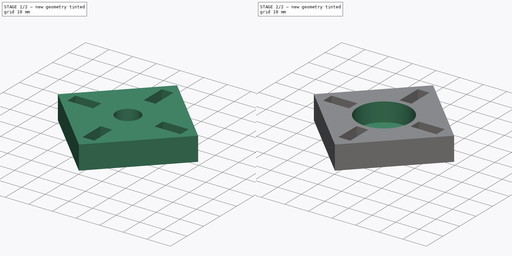
[diagram: build sequence overview — one tinted view per stage of 2, left to right]
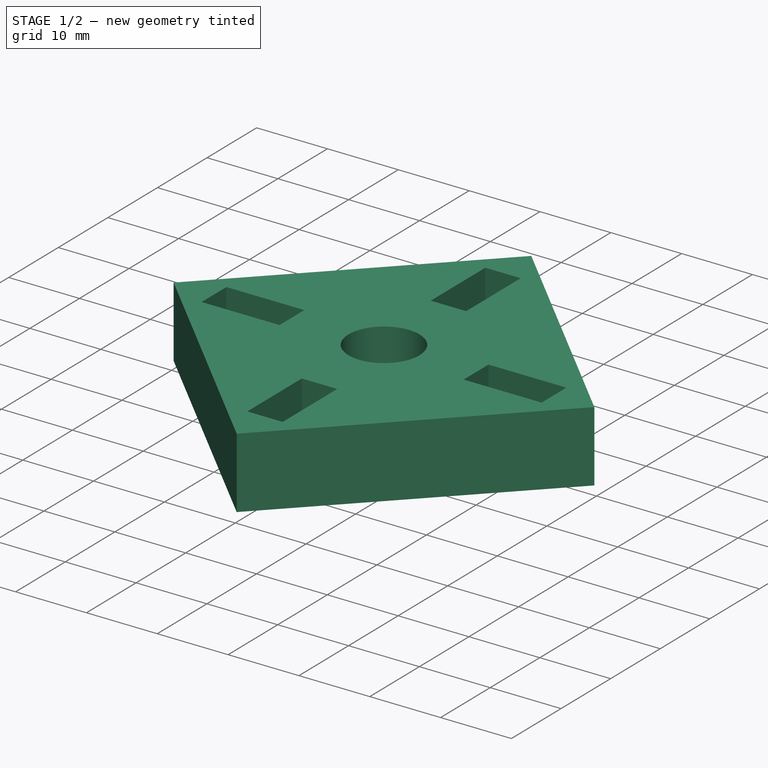
[diagram: stage 1 of 2 — iso view after this stage's code; geometry added in this stage tinted green]
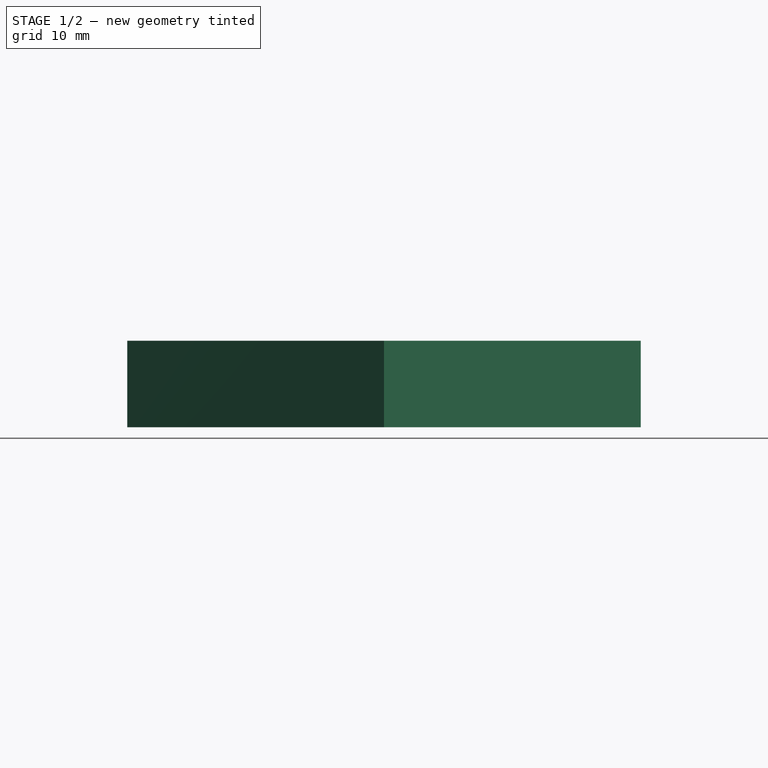
[diagram: stage 1 of 2 — front view after this stage's code; geometry added in this stage tinted green]
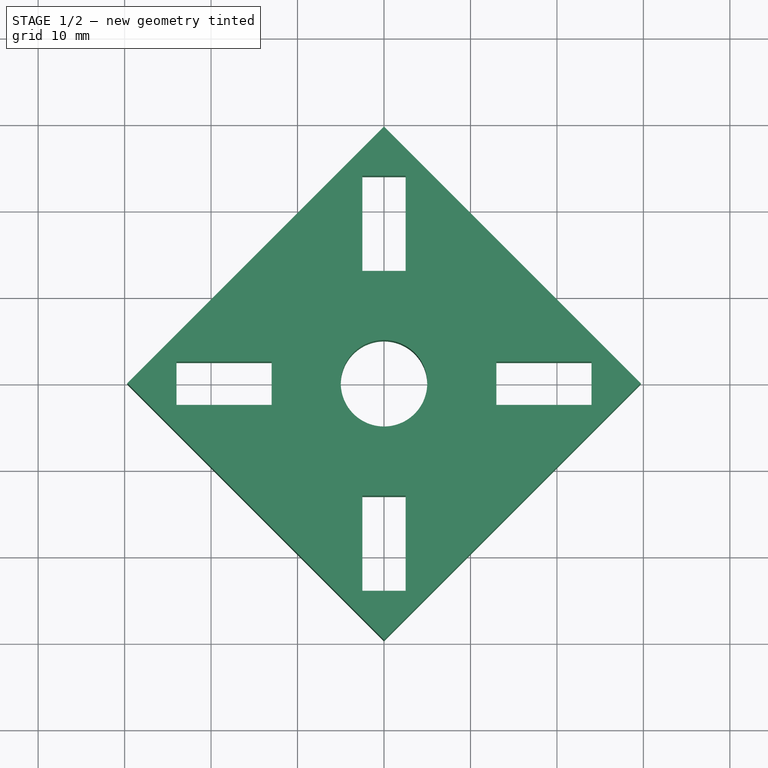
[diagram: stage 1 of 2 — top view after this stage's code; geometry added in this stage tinted green]
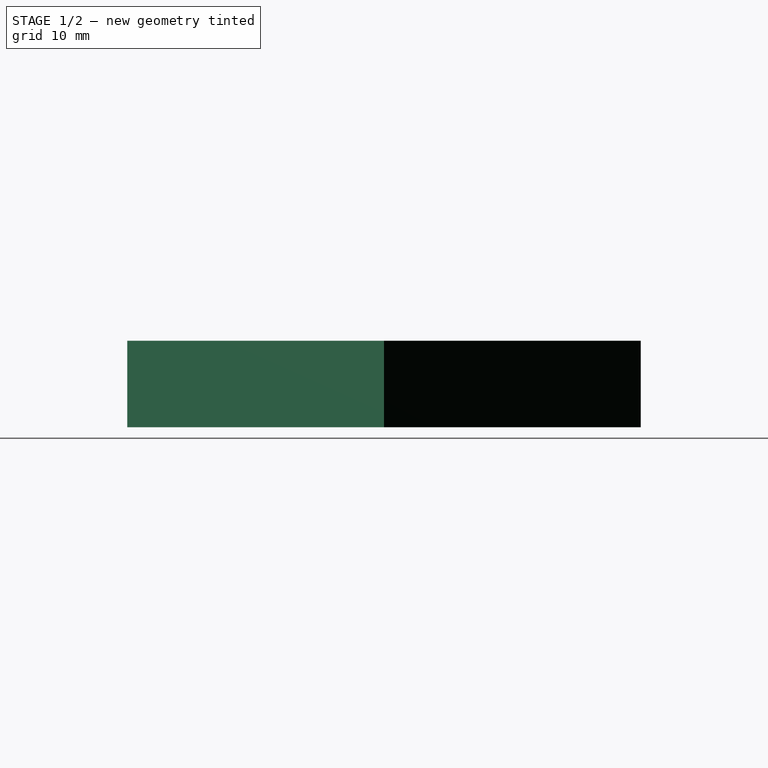
[diagram: stage 1 of 2 — right view after this stage's code; geometry added in this stage tinted green]
FCSTD DOCUMENT  (FreeCAD 0.14R3702 (Git))
Label: dummy_motor
License: CC-BY 3.0
LicenseURL: http://creativecommons.org/licenses/by/3.0/
objects: Sketcher::SketchObject×2, PartDesign::Pad×1, PartDesign::Pocket×1
note: 6 computed .brp shape members not serialized (recipe doc carries the construction recipe); baked Part::Feature solids carry a one-line shape summary decoded from their .brp

FEATURE [Sketcher::SketchObject] Sketch  label="Tapa"
  sketch-geometry (21):
    g0: Circle CenterX=0 CenterY=0 CenterZ=0 NormalX=0 NormalY=0 NormalZ=1 Radius=5
    g1: LineSegment StartX=-24 StartY=2.5 StartZ=0 EndX=-13 EndY=2.5 EndZ=0
    g2: LineSegment StartX=-13 StartY=2.5 StartZ=0 EndX=-13 EndY=-2.5 EndZ=0
    g3: LineSegment StartX=-13 StartY=-2.5 StartZ=0 EndX=-24 EndY=-2.5 EndZ=0
    g4: LineSegment StartX=-24 StartY=-2.5 StartZ=0 EndX=-24 EndY=2.5 EndZ=0
    g5: LineSegment StartX=-2.5 StartY=24 StartZ=0 EndX=2.5 EndY=24 EndZ=0
    g6: LineSegment StartX=2.5 StartY=24 StartZ=0 EndX=2.5 EndY=13 EndZ=0
    g7: LineSegment StartX=2.5 StartY=13 StartZ=0 EndX=-2.5 EndY=13 EndZ=0
    g8: LineSegment StartX=-2.5 StartY=13 StartZ=0 EndX=-2.5 EndY=24 EndZ=0
    g9: LineSegment StartX=-2.5 StartY=-13 StartZ=0 EndX=2.5 EndY=-13 EndZ=0
    g10: LineSegment StartX=2.5 StartY=-13 StartZ=0 EndX=2.5 EndY=-24 EndZ=0
    g11: LineSegment StartX=2.5 StartY=-24 StartZ=0 EndX=-2.5 EndY=-24 EndZ=0
    g12: LineSegment StartX=-2.5 StartY=-24 StartZ=0 EndX=-2.5 EndY=-13 EndZ=0
    g13: LineSegment StartX=13 StartY=2.5 StartZ=0 EndX=24 EndY=2.5 EndZ=0
    g14: LineSegment StartX=24 StartY=2.5 StartZ=0 EndX=24 EndY=-2.5 EndZ=0
    g15: LineSegment StartX=24 StartY=-2.5 StartZ=0 EndX=13 EndY=-2.5 EndZ=0
    g16: LineSegment StartX=13 StartY=-2.5 StartZ=0 EndX=13 EndY=2.5 EndZ=0
    g17: LineSegment StartX=29.6985 StartY=0 StartZ=0 EndX=0 EndY=29.6985 EndZ=0
    g18: LineSegment StartX=0 StartY=29.6985 StartZ=0 EndX=-29.6985 EndY=0 EndZ=0
    g19: LineSegment StartX=-29.6985 StartY=0 StartZ=0 EndX=0 EndY=-29.6985 EndZ=0
    g20: LineSegment StartX=0 StartY=-29.6985 StartZ=0 EndX=29.6985 EndY=0 EndZ=0
  constraints (62):
    c: Radius(g0) = 5
    c: Coincident(g1,g2)
    c: Coincident(g2,g3)
    c: Coincident(g3,g4)
    c: Coincident(g4,g1)
    c: Horizontal(g1)
    c: Horizontal(g3)
    c: Vertical(g2)
    c: Vertical(g4)
    c: Coincident(g5,g6)
    c: Coincident(g6,g7)
    c: Coincident(g7,g8)
    c: Coincident(g8,g5)
    c: Horizontal(g5)
    c: Horizontal(g7)
    c: Vertical(g6)
    c: Vertical(g8)
    c: Coincident(g9,g10)
    c: Coincident(g10,g11)
    c: Coincident(g11,g12)
    c: Coincident(g12,g9)
    c: Horizontal(g9)
    c: Horizontal(g11)
    c: Vertical(g10)
    c: Vertical(g12)
    c: Coincident(g13,g14)
    c: Coincident(g14,g15)
    c: Coincident(g15,g16)
    c: Coincident(g16,g13)
    c: Horizontal(g13)
    c: Horizontal(g15)
    c: Vertical(g14)
    c: Vertical(g16)
    c: Distance(g4) = 5
    c: Distance(g11) = 5
    c: Distance(g5) = 5
    c: Distance(g14) = 5
    c: Distance(g3) = 11
    c: Distance(g15) = 11
    c: Distance(g12) = 11
    c: Distance(g8) = 11
    c: DistanceY(g-1,g1) = 2.5
    c: DistanceY(g-1,g13) = 2.5
    c: DistanceX(g-1,g6) = 2.5
    c: DistanceX(g-1,g10) = 2.5
    c: DistanceX(g-1,g2) = -13
    c: DistanceX(g-1,g15) = 13
    c: DistanceY(g-1,g6) = 13
    c: DistanceY(g-1,g9) = -13
    c: Coincident(g0,g-1)
    c: Coincident(g17,g18)
    c: Coincident(g18,g19)
    c: Coincident(g19,g20)
    c: Coincident(g20,g17)
    c: Distance(g17) = 42
    c: Distance(g18) = 42
    c: Equal(g19,g17)
    c: Equal(g20,g18)
    c: DistanceX(g-1,g17) = 0
    c: DistanceX(g-1,g19) = 0
    c: DistanceY(g-1,g17) = 0
    c: Angle(g17,g-1) = 0.785398
FEATURE [PartDesign::Pad] Pad
  Length = 10
  Length2 = 100
  Sketch = -> Sketch
  Type = 0
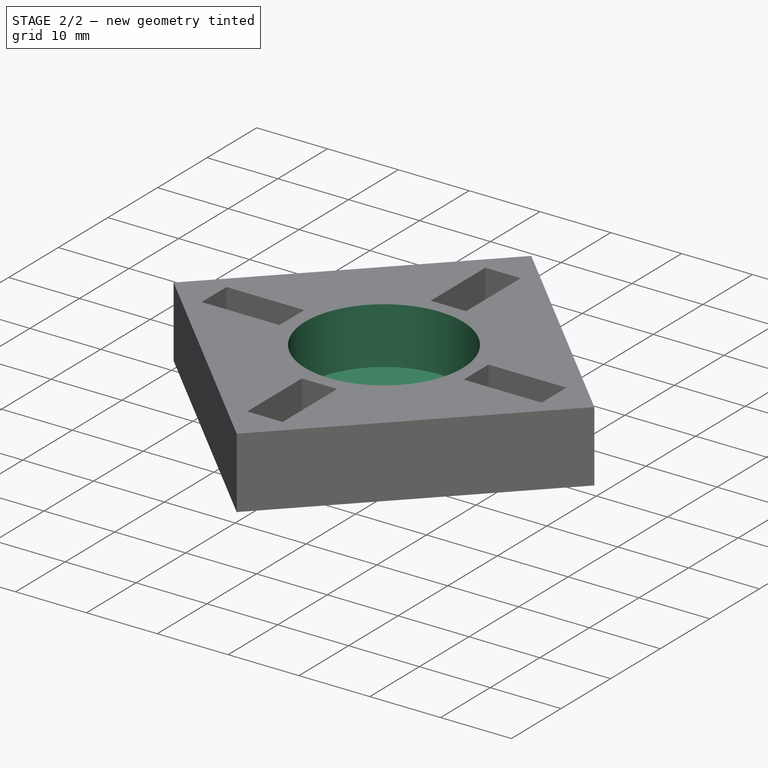
[diagram: stage 2 of 2 — iso view after this stage's code; geometry added in this stage tinted green]
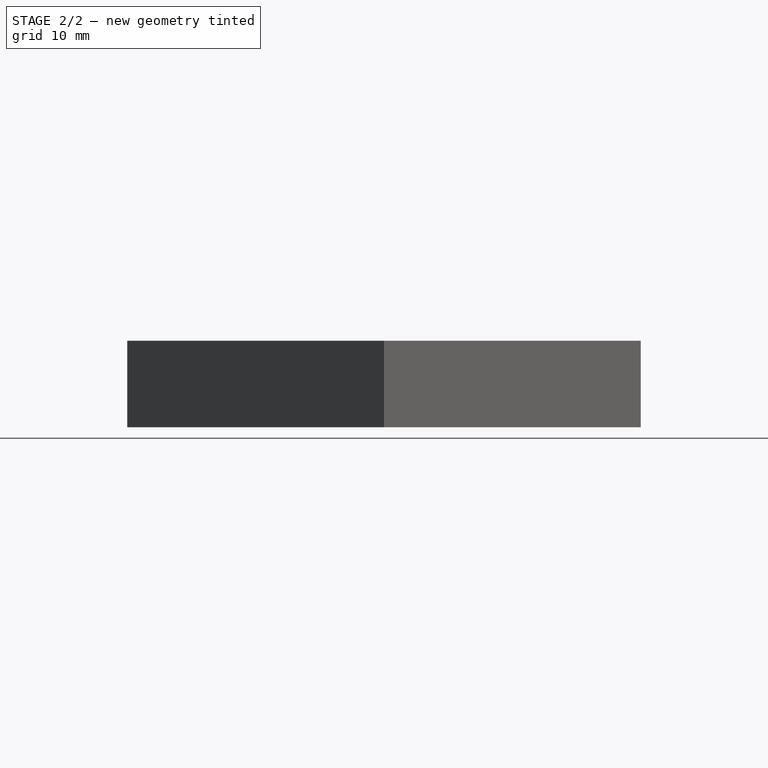
[diagram: stage 2 of 2 — front view after this stage's code; geometry added in this stage tinted green]
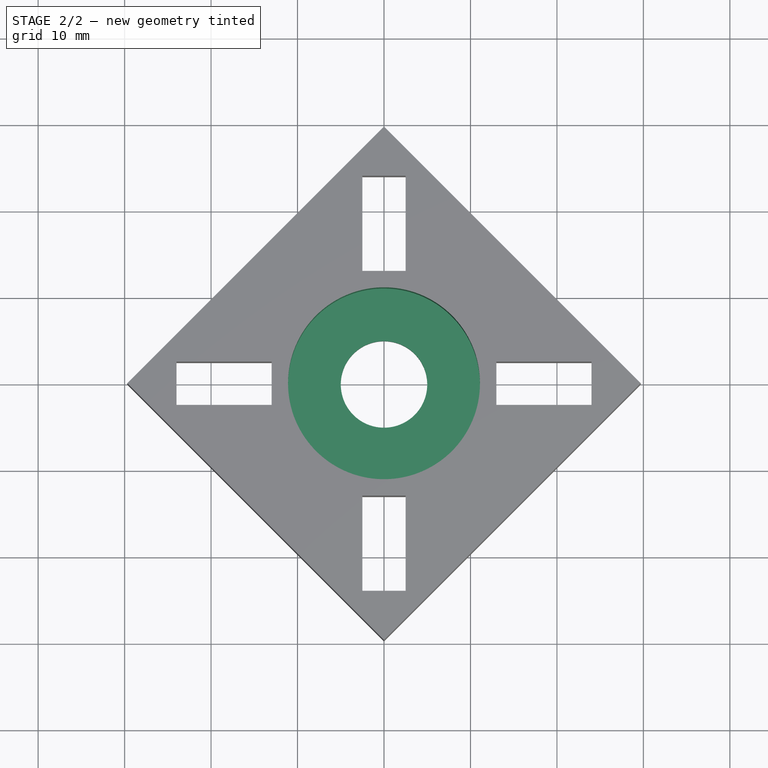
[diagram: stage 2 of 2 — top view after this stage's code; geometry added in this stage tinted green]
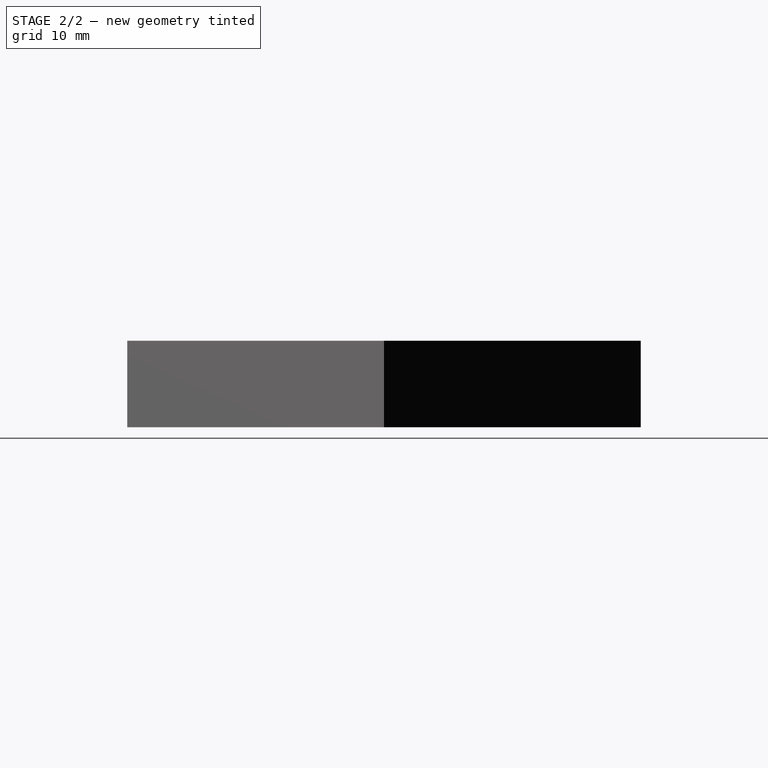
[diagram: stage 2 of 2 — right view after this stage's code; geometry added in this stage tinted green]
FEATURE [Sketcher::SketchObject] Sketch001
  Placement = pos=(0,0,10) rot=(0,0,1;0rad)
  Support = -> Pad [Face23]
  sketch-geometry (1):
    g0: Circle CenterX=0 CenterY=0 CenterZ=0 NormalX=0 NormalY=0 NormalZ=1 Radius=11.1
  constraints (2):
    c: Coincident(g0,g-1)
    c: Radius(g0) = 11.1
FEATURE [PartDesign::Pocket] Pocket
  Length = 8
  Sketch = -> Sketch001
  Type = 0
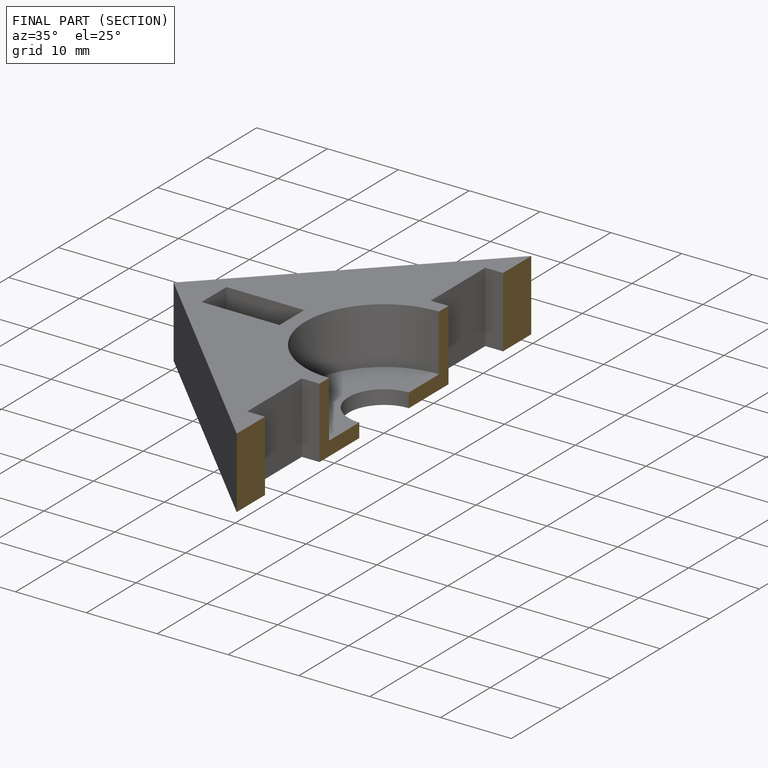
[diagram: finished part — half-section view (interior)]
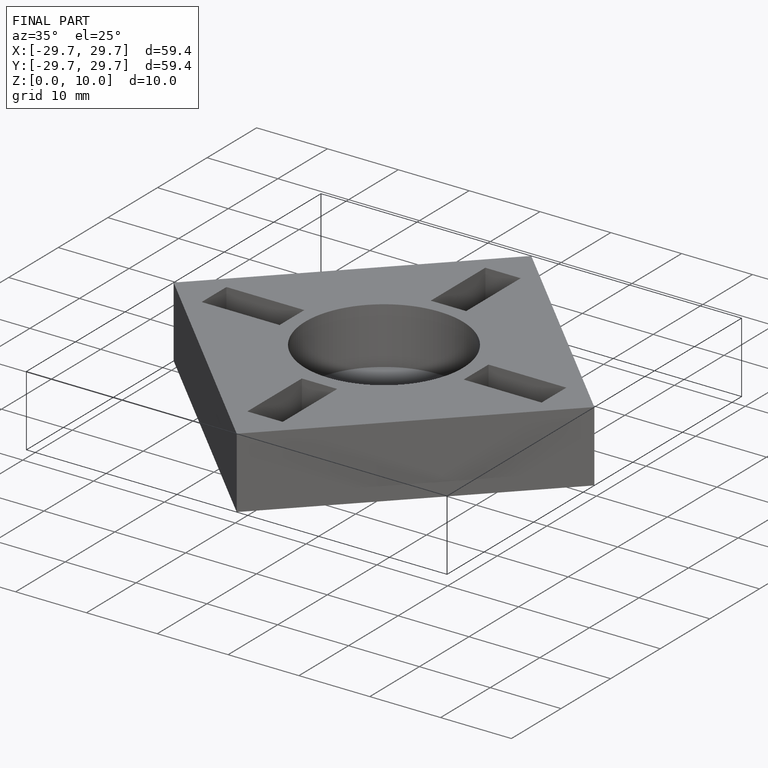
[diagram: finished part — iso view with bounding-box wireframe]
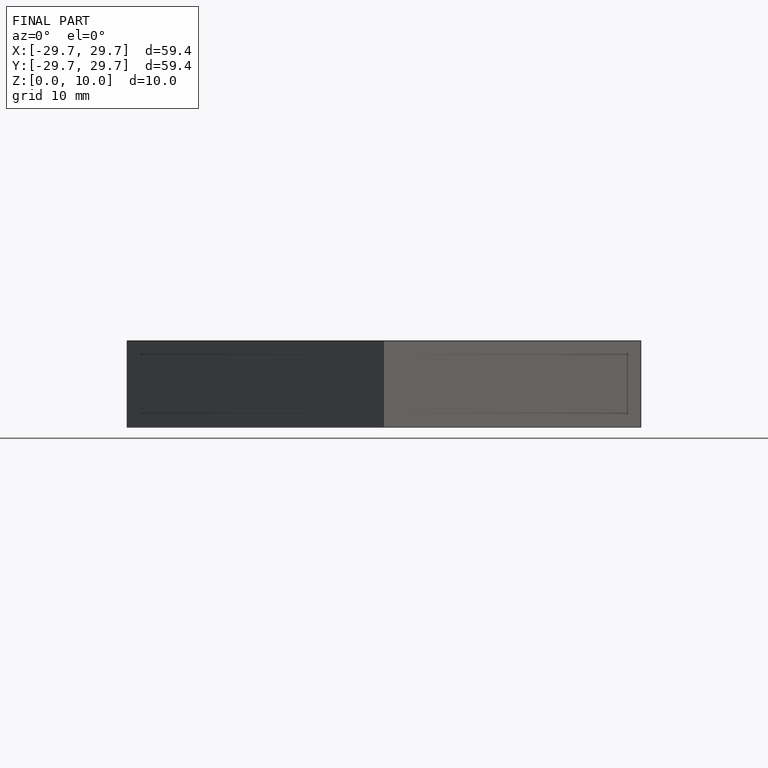
[diagram: finished part — front view with bounding-box wireframe]
